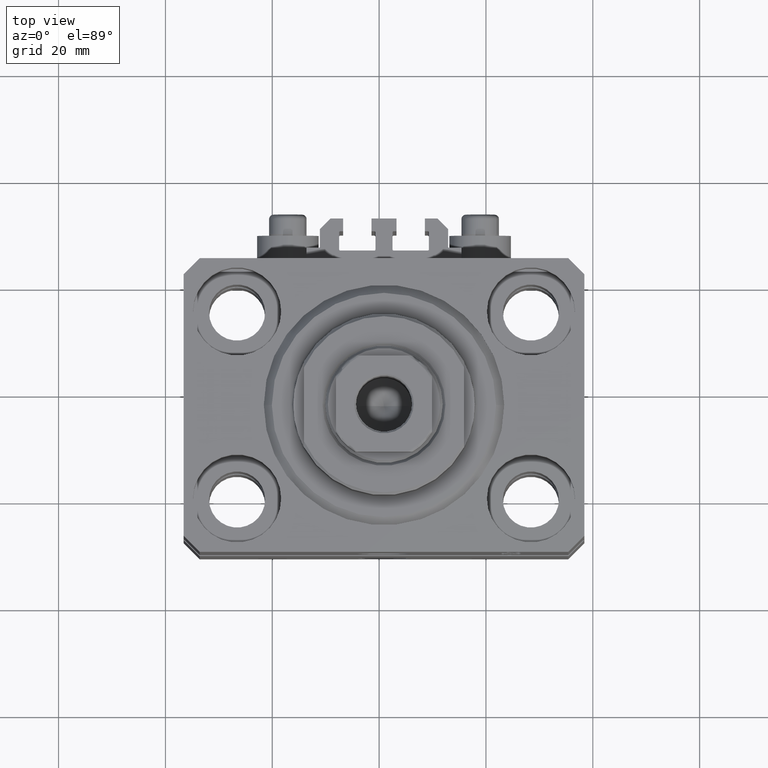
[diagram: clean part render]
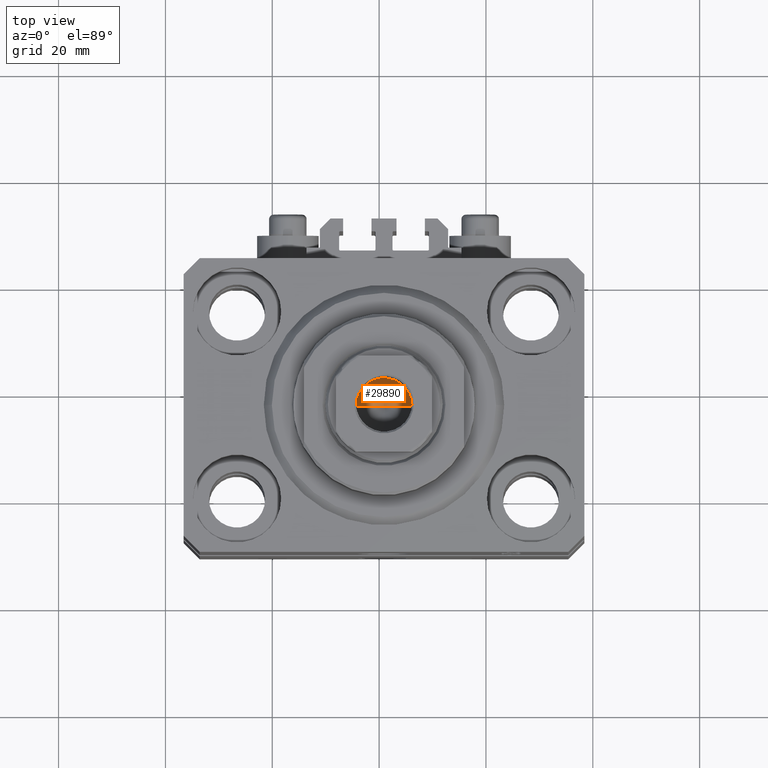
[diagram: same view with one face highlighted and labeled with its STEP entity id]
A machine part, top view. The second image highlights one B-rep face of the part: STEP entity #29890.
In plain terms, the highlighted conical surface has half-angle 59 deg.
Its self-contained STEP definition (entity closure, byte-faithful):
#1583 = DIRECTION ( 'NONE',  ( 1.000000000000000000, 0.000000000000000000, 0.000000000000000000 ) ) ;
#4147 = ORIENTED_EDGE ( 'NONE', *, *, #28141, .F. ) ;
#4413 = LINE ( 'NONE', #33030, #7125 ) ;
#5030 = DIRECTION ( 'NONE',  ( -0.000000000000000000, -0.000000000000000000, 1.000000000000000000 ) ) ;
#6489 = CARTESIAN_POINT ( 'NONE',  ( 5.249999999999994671, 0.000000000000000000, 60.10000000000000853 ) ) ;
#7125 = VECTOR ( 'NONE', #12450, 1000.000000000000000 ) ;
#7151 = CONICAL_SURFACE ( 'NONE', #41169, 5.249999999999994671, 1.029744258676653645 ) ;
#9358 = DIRECTION ( 'NONE',  ( 0.8571673007021118895, 0.000000000000000000, 0.5150380749100549327 ) ) ;
#10132 = EDGE_CURVE ( 'NONE', #21495, #35212, #42014, .T. ) ;
#11739 = CIRCLE ( 'NONE', #43507, 5.249999999999994671 ) ;
#12236 = FACE_OUTER_BOUND ( 'NONE', #31227, .T. ) ;
#12450 = DIRECTION ( 'NONE',  ( -0.8571673007021118895, 1.049727191138618079E-16, 0.5150380749100549327 ) ) ;
#13686 = VERTEX_POINT ( 'NONE', #24412 ) ;
#21495 = VERTEX_POINT ( 'NONE', #21963 ) ;
#21963 = CARTESIAN_POINT ( 'NONE',  ( -6.783656367213677939E-15, 0.000000000000000000, 56.94548175010531565 ) ) ;
#24412 = CARTESIAN_POINT ( 'NONE',  ( -5.249999999999994671, 6.429395695523597250E-16, 60.10000000000000853 ) ) ;
#28141 = EDGE_CURVE ( 'NONE', #21495, #13686, #4413, .T. ) ;
#29890 = ADVANCED_FACE ( 'NONE', ( #12236 ), #7151, .F. ) ;
#31227 = EDGE_LOOP ( 'NONE', ( #4147, #38871, #44400 ) ) ;
#33030 = CARTESIAN_POINT ( 'NONE',  ( -5.249999999999994671, 6.429395695523597250E-16, 60.10000000000000853 ) ) ;
#33514 = CARTESIAN_POINT ( 'NONE',  ( 0.000000000000000000, 0.000000000000000000, 60.10000000000000853 ) ) ;
#33647 = DIRECTION ( 'NONE',  ( 1.000000000000000000, 0.000000000000000000, 0.000000000000000000 ) ) ;
#35212 = VERTEX_POINT ( 'NONE', #6489 ) ;
#35412 = EDGE_CURVE ( 'NONE', #35212, #13686, #11739, .T. ) ;
#37213 = CARTESIAN_POINT ( 'NONE',  ( 0.000000000000000000, 0.000000000000000000, 60.10000000000000853 ) ) ;
#37673 = VECTOR ( 'NONE', #9358, 1000.000000000000000 ) ;
#38474 = CARTESIAN_POINT ( 'NONE',  ( 5.249999999999994671, 0.000000000000000000, 60.10000000000000853 ) ) ;
#38871 = ORIENTED_EDGE ( 'NONE', *, *, #10132, .T. ) ;
#41169 = AXIS2_PLACEMENT_3D ( 'NONE', #33514, #45123, #1583 ) ;
#42014 = LINE ( 'NONE', #38474, #37673 ) ;
#43507 = AXIS2_PLACEMENT_3D ( 'NONE', #37213, #5030, #33647 ) ;
#44400 = ORIENTED_EDGE ( 'NONE', *, *, #35412, .T. ) ;
#45123 = DIRECTION ( 'NONE',  ( -0.000000000000000000, -0.000000000000000000, 1.000000000000000000 ) ) ;